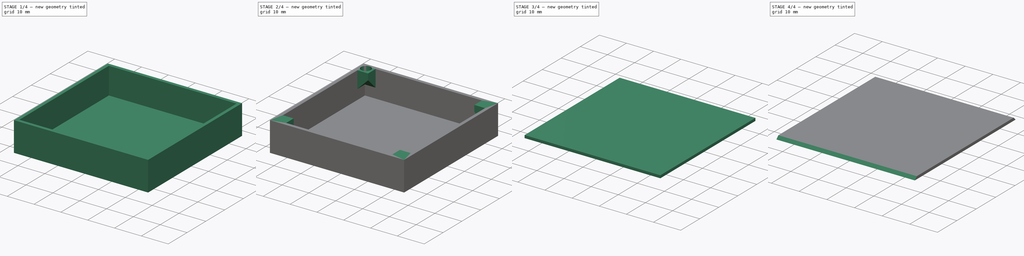
[diagram: build sequence overview — one tinted view per stage of 4, left to right]
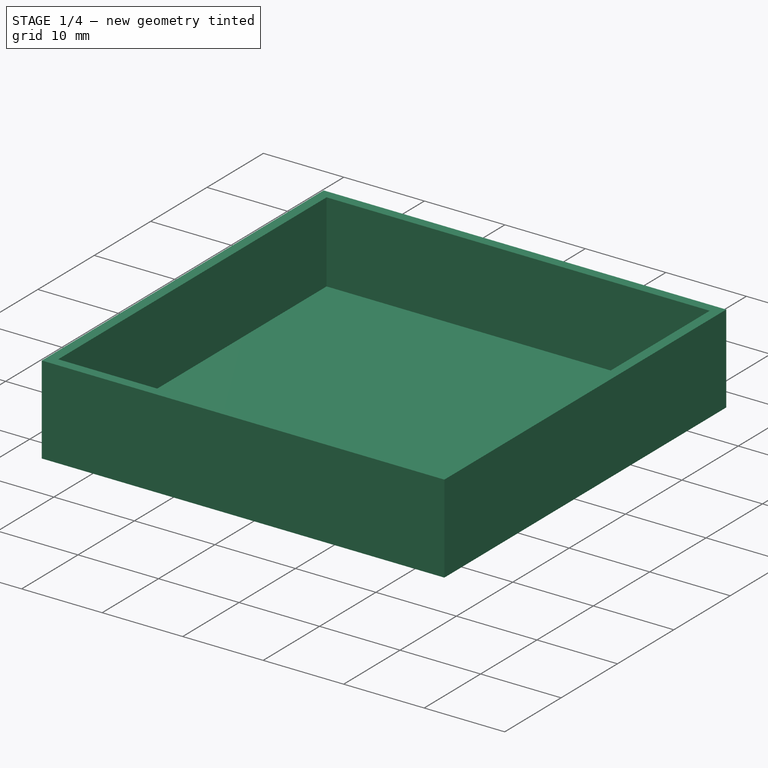
[diagram: stage 1 of 4 — iso view after this stage's code; geometry added in this stage tinted green]
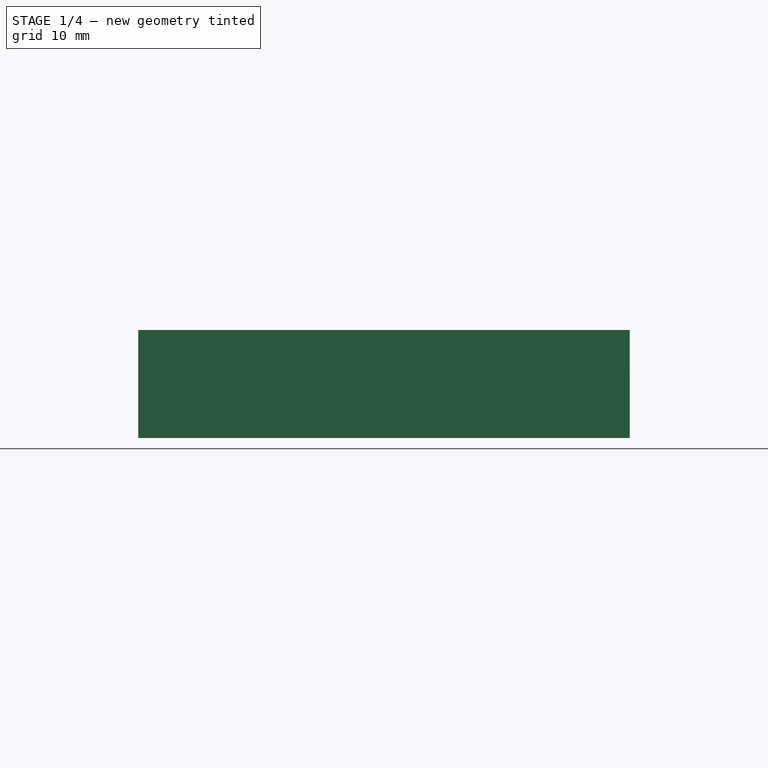
[diagram: stage 1 of 4 — front view after this stage's code; geometry added in this stage tinted green]
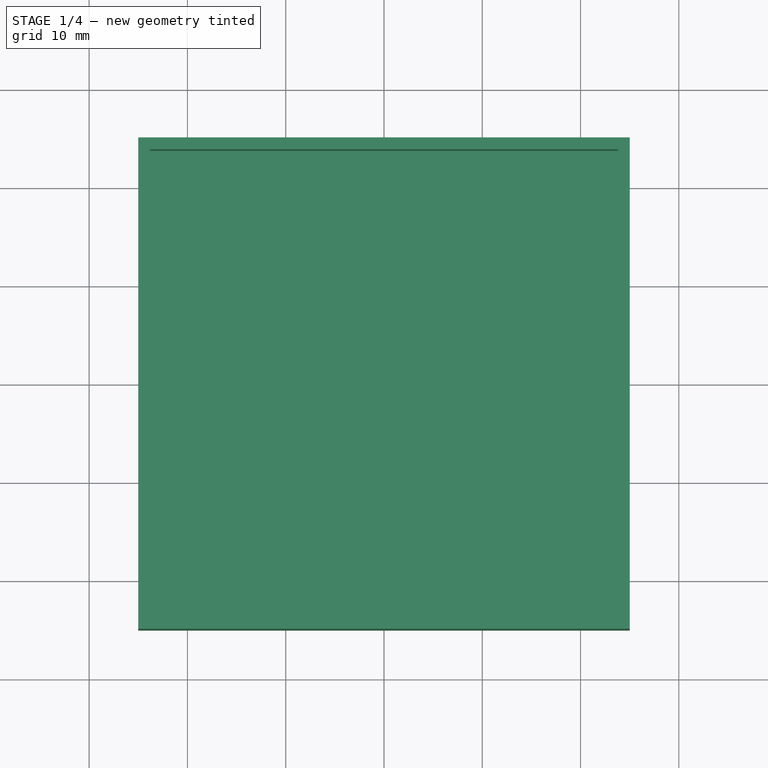
[diagram: stage 1 of 4 — top view after this stage's code; geometry added in this stage tinted green]
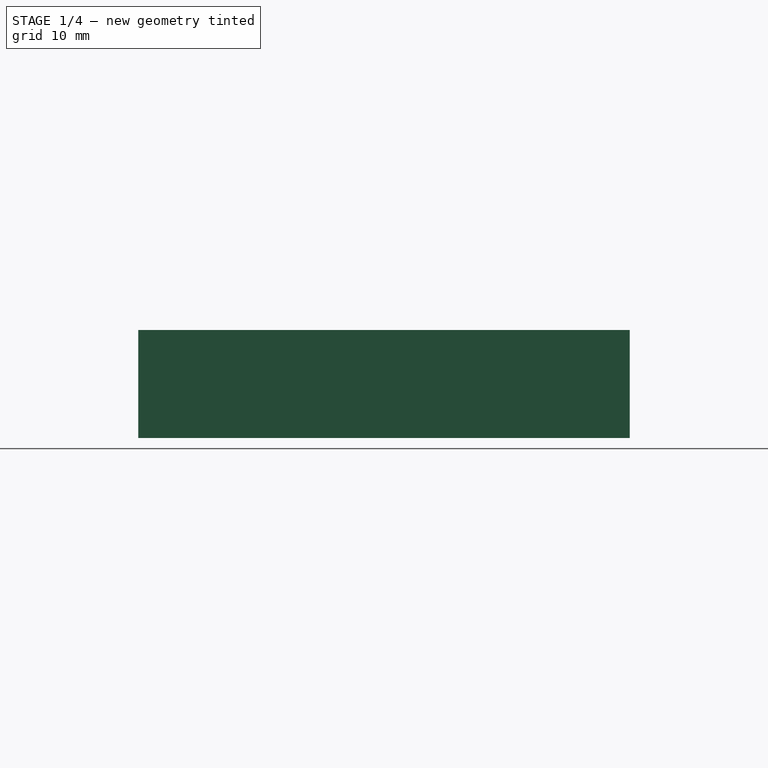
[diagram: stage 1 of 4 — right view after this stage's code; geometry added in this stage tinted green]
FCSTD DOCUMENT  (FreeCAD 1.1R41843 (Git))
Label: каб
License: All rights reserved
LicenseURL: https://en.wikipedia.org/wiki/All_rights_reserved
objects: Sketcher::SketchObject×6, PartDesign::Pad×6, App::Point×2, PartDesign::Pocket×2, PartDesign::Mirrored×2, PartDesign::SubShapeBinder×2, PartDesign::Body×2, PartDesign::Chamfer×1, PartDesign::MultiTransform×1
note: 49 computed .brp shape members not serialized (recipe doc carries the construction recipe); baked Part::Feature solids carry a one-line shape summary decoded from their .brp

FEATURE [App::Point] Origin001  label="Начало координат"
  Role = Origin
FEATURE [Sketcher::SketchObject] Sketch
  ArcFitTolerance = 1e-06
  AttachmentSupport = -> [Origin]
  ExternalTypes = [0]
  FullyConstrained = true
  MakeInternals = false
  MapMode = 5
  sketch-geometry (12):
    g0: LineSegment StartX=-25 StartY=-25 StartZ=0 EndX=25 EndY=-25 EndZ=0
    g1: LineSegment StartX=25 StartY=-25 StartZ=0 EndX=25 EndY=25 EndZ=0
    g2: LineSegment StartX=25 StartY=25 StartZ=0 EndX=-25 EndY=25 EndZ=0
    g3: LineSegment StartX=-25 StartY=25 StartZ=0 EndX=-25 EndY=-25 EndZ=0
    g4: GeomPoint [constr] X=0 Y=0 Z=0
    g5: LineSegment StartX=-23.8 StartY=-23.8 StartZ=0 EndX=23.8 EndY=-23.8 EndZ=0
    g6: LineSegment StartX=23.8 StartY=-23.8 StartZ=0 EndX=23.8 EndY=23.8 EndZ=0
    g7: LineSegment StartX=23.8 StartY=23.8 StartZ=0 EndX=-23.8 EndY=23.8 EndZ=0
    g8: LineSegment StartX=-23.8 StartY=23.8 StartZ=0 EndX=-23.8 EndY=-23.8 EndZ=0
    g9: GeomPoint [constr] X=0 Y=0 Z=0
    g10: LineSegment [constr] StartX=23.8 StartY=25 StartZ=0 EndX=23.8 EndY=23.8 EndZ=0
    g11: LineSegment [constr] StartX=23.8 StartY=23.8 StartZ=0 EndX=25 EndY=23.8 EndZ=0
  constraints (30):
    c: Coincident(g0,g1)
    c: Coincident(g1,g2)
    c: Coincident(g2,g3)
    c: Coincident(g3,g0)
    c: Horizontal(g0)
    c: Horizontal(g2)
    c: Vertical(g1)
    c: Vertical(g3)
    c: Symmetric(g2,g0,g4)
    c: Coincident(g4,g-1)
    c: Coincident(g5,g6)
    c: Coincident(g6,g7)
    c: Coincident(g7,g8)
    c: Coincident(g8,g5)
    c: Horizontal(g5)
    c: Horizontal(g7)
    c: Vertical(g6)
    c: Vertical(g8)
    c: Symmetric(g7,g5,g9)
    c: Coincident(g9,g4)
    c: DistanceX(g2,g2) = 50
    c: DistanceY(g1,g1) = 50
    c: Coincident(g11,g10)
    c: PointOnObject(g11,g1)
    c: PointOnObject(g10,g2)
    c: Coincident(g6,g10)
    c: Equal(g11,g10)
    c: Horizontal(g11)
    c: Vertical(g10)
    c: Distance(g11,g11) = 1.2
FEATURE [PartDesign::Pad] Pad
  Direction = (0,0,1)
  Length = 10
  Length2 = 10
  Profile = -> Sketch
  ReferenceAxis = -> Sketch [N_Axis]
  Refine = true
  Suppressed = false
  Type = 0
FEATURE [Sketcher::SketchObject] Sketch001
  ArcFitTolerance = 1e-06
  AttachmentSupport = -> [Pad]
  ExternalGeometry = -> [Pad]
  ExternalTypes = [0,0,0,0]
  FullyConstrained = true
  MakeInternals = false
  MapMode = 5
  Placement = pos=(0,0,0) rot=(1,0,0;3.14159rad)
FEATURE [PartDesign::Pad] Pad001
  BaseFeature = -> Pad
  Direction = (0,0,-1)
  Length = 1
  Length2 = 10
  Profile = -> Sketch001
  ReferenceAxis = -> Sketch001 [N_Axis]
  Refine = true
  Suppressed = false
  Type = 0
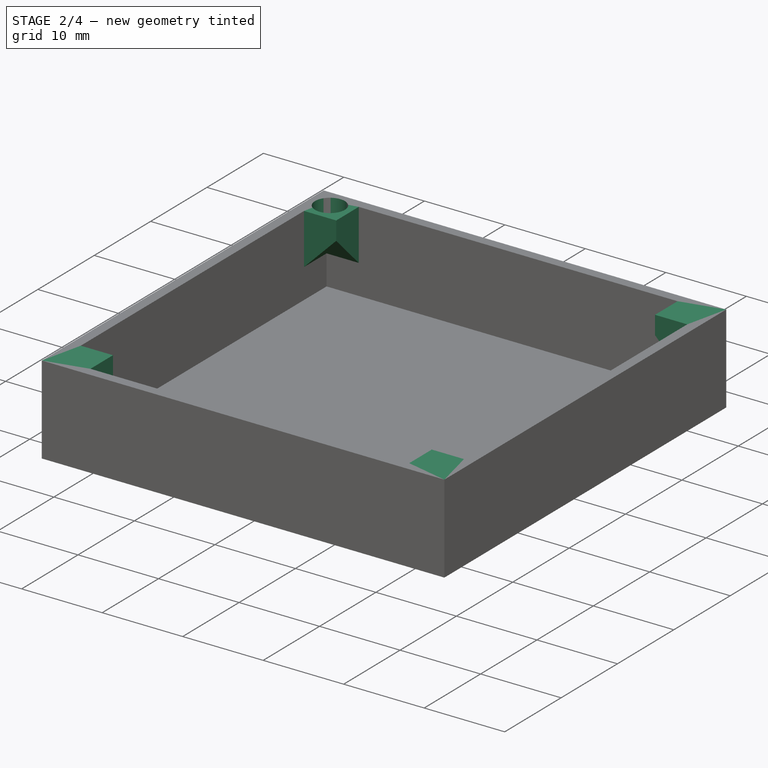
[diagram: stage 2 of 4 — iso view after this stage's code; geometry added in this stage tinted green]
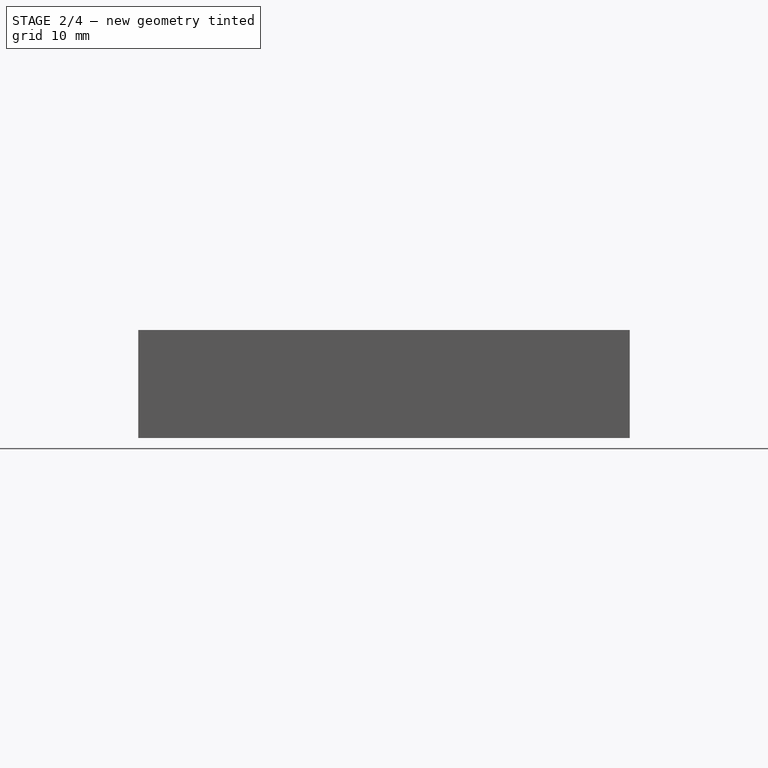
[diagram: stage 2 of 4 — front view after this stage's code; geometry added in this stage tinted green]
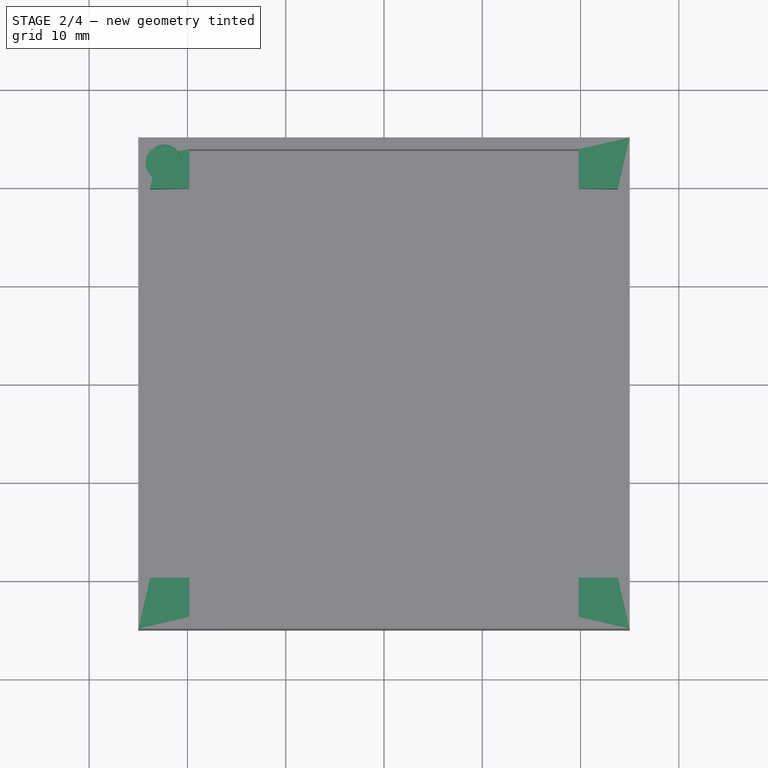
[diagram: stage 2 of 4 — top view after this stage's code; geometry added in this stage tinted green]
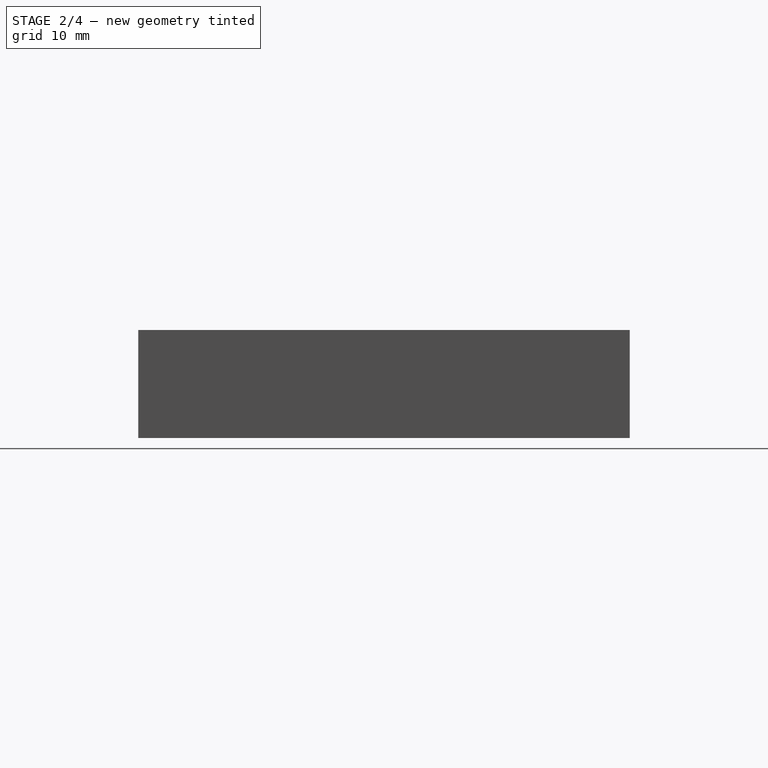
[diagram: stage 2 of 4 — right view after this stage's code; geometry added in this stage tinted green]
FEATURE [Sketcher::SketchObject] Sketch002
  ArcFitTolerance = 1e-06
  AttachmentSupport = -> [Pad001]
  ExternalGeometry = -> [Pad001]
  ExternalTypes = [0,0,0,0,0]
  FullyConstrained = true
  MakeInternals = false
  MapMode = 5
  Placement = pos=(0,0,10) rot=(0,0,1;0rad)
  sketch-geometry (17):
    g0: LineSegment StartX=23.8 StartY=23.8 StartZ=0 EndX=19.8 EndY=23.8 EndZ=0
    g1: LineSegment StartX=19.8 StartY=23.8 StartZ=0 EndX=19.8 EndY=19.8 EndZ=0
    g2: LineSegment StartX=19.8 StartY=19.8 StartZ=0 EndX=23.8 EndY=19.8 EndZ=0
    g3: LineSegment StartX=23.8 StartY=19.8 StartZ=0 EndX=23.8 EndY=23.8 EndZ=0
    g4: GeomPoint [constr] X=19.8 Y=19.8 Z=0
    g5: LineSegment StartX=-23.8 StartY=23.8 StartZ=0 EndX=-23.8 EndY=19.8 EndZ=0
    g6: LineSegment StartX=-23.8 StartY=19.8 StartZ=0 EndX=-19.8 EndY=19.8 EndZ=0
    g7: LineSegment StartX=-19.8 StartY=19.8 StartZ=0 EndX=-19.8 EndY=23.8 EndZ=0
    g8: LineSegment StartX=-19.8 StartY=23.8 StartZ=0 EndX=-23.8 EndY=23.8 EndZ=0
    g9: LineSegment StartX=-23.8 StartY=-23.8 StartZ=0 EndX=-19.8 EndY=-23.8 EndZ=0
    g10: LineSegment StartX=-19.8 StartY=-23.8 StartZ=0 EndX=-19.8 EndY=-19.8 EndZ=0
    g11: LineSegment StartX=-19.8 StartY=-19.8 StartZ=0 EndX=-23.8 EndY=-19.8 EndZ=0
    g12: LineSegment StartX=-23.8 StartY=-19.8 StartZ=0 EndX=-23.8 EndY=-23.8 EndZ=0
    g13: LineSegment StartX=23.8 StartY=-23.8 StartZ=0 EndX=23.8 EndY=-19.8 EndZ=0
    g14: LineSegment StartX=23.8 StartY=-19.8 StartZ=0 EndX=19.8 EndY=-19.8 EndZ=0
    g15: LineSegment StartX=19.8 StartY=-19.8 StartZ=0 EndX=19.8 EndY=-23.8 EndZ=0
    g16: LineSegment StartX=19.8 StartY=-23.8 StartZ=0 EndX=23.8 EndY=-23.8 EndZ=0
  constraints (45):
    c: Coincident(g0,g1)
    c: Coincident(g1,g2)
    c: Coincident(g2,g3)
    c: Coincident(g3,g0)
    c: Horizontal(g0)
    c: Horizontal(g2)
    c: Vertical(g1)
    c: Vertical(g3)
    c: Coincident(g0,g-3)
    c: Equal(g3,g0)
    c: DistanceX(g0,g0) = 4
    c: Coincident(g4,g1)
    c: Coincident(g5,g6)
    c: Coincident(g6,g7)
    c: Coincident(g7,g8)
    c: Coincident(g8,g5)
    c: Vertical(g5)
    c: Vertical(g7)
    c: Horizontal(g6)
    c: Horizontal(g8)
    c: Coincident(g5,g-7)
    c: Coincident(g9,g10)
    c: Coincident(g10,g11)
    c: Coincident(g11,g12)
    c: Coincident(g12,g9)
    c: Horizontal(g9)
    c: Horizontal(g11)
    c: Vertical(g10)
    c: Vertical(g12)
    c: Coincident(g9,g-6)
    c: Coincident(g13,g14)
    c: Coincident(g14,g15)
    c: Coincident(g15,g16)
    c: Coincident(g16,g13)
    c: Vertical(g13)
    c: Vertical(g15)
    c: Horizontal(g14)
    c: Horizontal(g16)
    c: Coincident(g13,g-5)
    c: Equal(g14,g15)
    c: Equal(g10,g11)
    c: Equal(g11,g7)
    c: Equal(g7,g8)
    c: Equal(g8,g0)
    c: Equal(g14,g8)
FEATURE [PartDesign::Pad] Pad002
  BaseFeature = -> Pad001
  Direction = (0,0,1)
  Length = 2.3
  Length2 = 10
  Profile = -> Sketch002
  ReferenceAxis = -> Sketch002 [N_Axis]
  Refine = true
  Reversed = true
  Suppressed = false
  Type = 0
FEATURE [PartDesign::Chamfer] Chamfer
  Angle = 45
  Base = -> Pad002 [Edge34,Edge43,Edge40,Edge48,Edge45,Edge30,Edge27,Edge37]
  BaseFeature = -> Pad002
  ChamferType = 0
  FlipDirection = false
  Refine = true
  Size = 3.99
  Size2 = 1
  SupportTransform = false
  Suppressed = false
  UseAllEdges = false
FEATURE [Sketcher::SketchObject] Sketch003
  ArcFitTolerance = 1e-06
  AttachmentSupport = -> [Chamfer]
  ExternalGeometry = -> [Chamfer]
  ExternalTypes = [0,0,0]
  FullyConstrained = true
  MakeInternals = false
  MapMode = 5
  Placement = pos=(0,0,10) rot=(0,0,1;0rad)
  sketch-geometry (1):
    g0: Circle CenterX=-22.4 CenterY=22.4 CenterZ=0 NormalX=0 NormalY=0 NormalZ=1 AngleXU=0 Radius=1.85
  constraints (2):
    c: Symmetric(g-5,g-4,g0)
    c: Diameter(g0) = 3.7
FEATURE [PartDesign::Pocket] Pocket
  BaseFeature = -> Chamfer
  Direction = (0,0,-1)
  Length = 2
  Length2 = 5
  Profile = -> Sketch003
  ReferenceAxis = -> Sketch003 [N_Axis]
  Refine = true
  Suppressed = false
  Type = 0
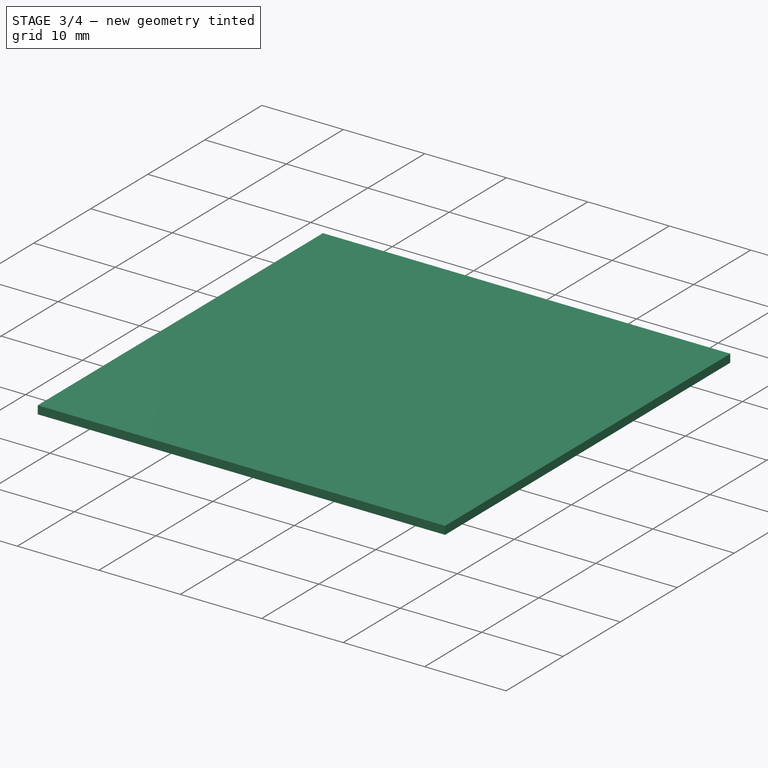
[diagram: stage 3 of 4 — iso view after this stage's code; geometry added in this stage tinted green]
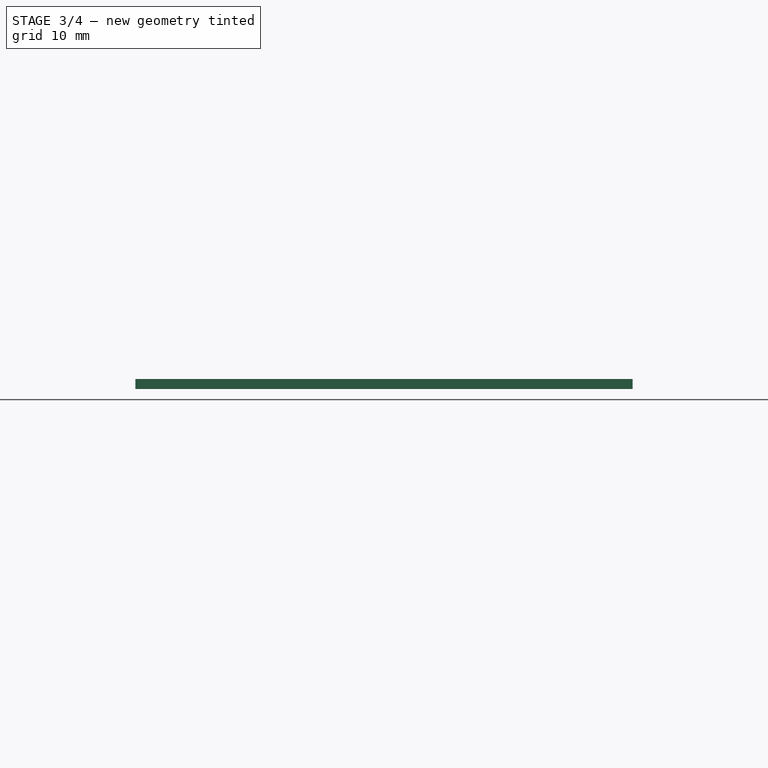
[diagram: stage 3 of 4 — front view after this stage's code; geometry added in this stage tinted green]
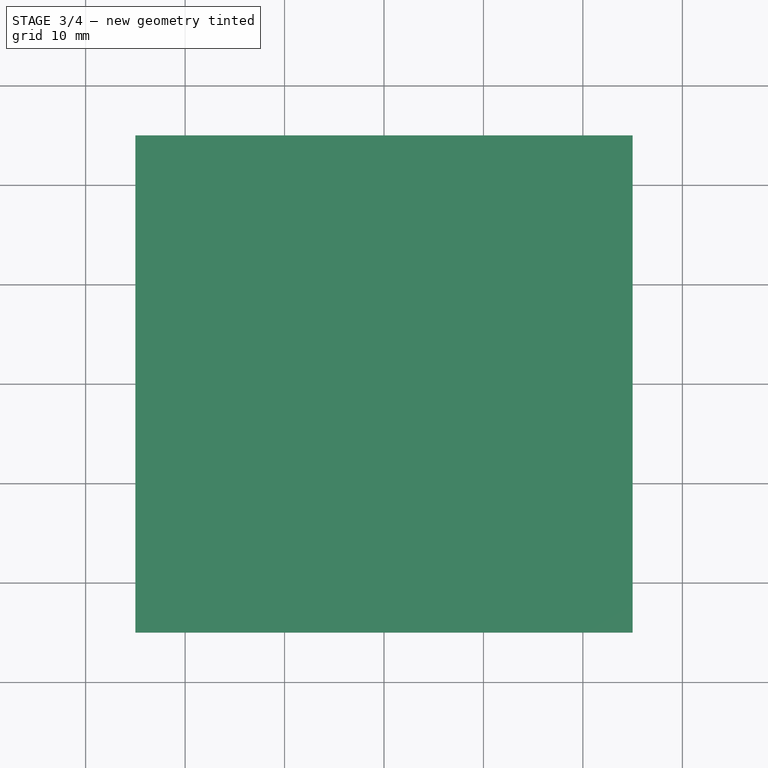
[diagram: stage 3 of 4 — top view after this stage's code; geometry added in this stage tinted green]
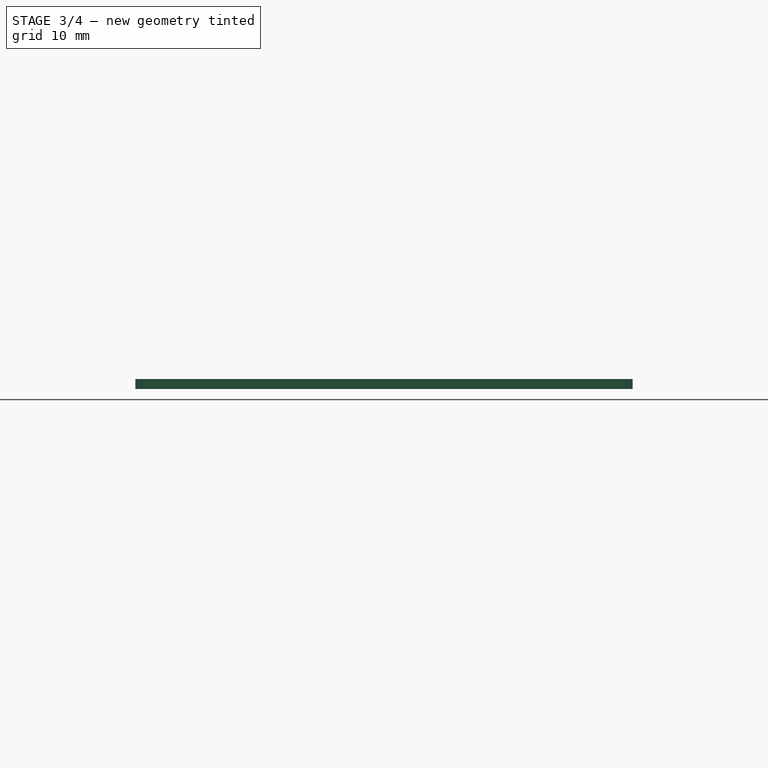
[diagram: stage 3 of 4 — right view after this stage's code; geometry added in this stage tinted green]
FEATURE [PartDesign::Mirrored] Mirrored
  MirrorPlane = -> YZ_Plane
  Refine = true
  Suppressed = false
  TransformMode = 0
FEATURE [PartDesign::Mirrored] Mirrored001
  MirrorPlane = -> XZ_Plane
  Refine = true
  Suppressed = false
  TransformMode = 0
FEATURE [PartDesign::MultiTransform] MultiTransform
  BaseFeature = -> Pocket
  Originals = -> [Pocket]
  Refine = true
  Suppressed = false
  TransformMode = 0
  Transformations = -> [Mirrored,Mirrored001]
FEATURE [App::Point] Origin003  label="Начало координат002"
  Role = Origin
FEATURE [PartDesign::SubShapeBinder] Binder
  BindCopyOnChange = 0
  BindMode = 0
  ClaimChildren = false
  Context = -> Body001 [Binder.]
  Fuse = false
  MakeFace = true
  OffsetFill = false
  OffsetIntersection = false
  OffsetJoinType = 0
  OffsetOpenResult = false
  PartialLoad = false
  Refine = true
  Relative = true
  Support = -> [Body[MultiTransform.Edge40,MultiTransform.Edge39,MultiTransform.Edge42,MultiTransform.Edge41]]
  _Version = 2
FEATURE [PartDesign::Pad] Pad003
  Direction = (0,0,1)
  Length = 1
  Length2 = 10
  Profile = -> Binder
  Refine = true
  Suppressed = false
  Type = 0
FEATURE [Sketcher::SketchObject] Sketch005
  ArcFitTolerance = 1e-06
  AttachmentSupport = -> [MultiTransform]
  ExternalGeometry = -> [MultiTransform]
  ExternalTypes = [0,0,0,0,0,0,0,0,0,0,0,0]
  FullyConstrained = true
  MakeInternals = false
  MapMode = 5
  Placement = pos=(0,0,10) rot=(0,0,1;0rad)
  sketch-geometry (12):
    g0: ArcOfCircle CenterX=22.4 CenterY=22.4 CenterZ=0 NormalX=0 NormalY=0 NormalZ=1 AngleXU=0 Radius=1.85 StartAngle=5.57073 EndAngle=8.56644
    g1: ArcOfCircle CenterX=-22.4 CenterY=22.4 CenterZ=0 NormalX=0 NormalY=0 NormalZ=1 AngleXU=0 Radius=1.85 StartAngle=0.858337 EndAngle=3.85405
    g2: LineSegment StartX=-21.1907 StartY=23.8 StartZ=0 EndX=-19.8 EndY=23.8 EndZ=0
    g3: LineSegment StartX=-23.8 StartY=19.8 StartZ=0 EndX=-23.8 EndY=21.1907 EndZ=0
    g4: ArcOfCircle CenterX=-22.4 CenterY=-22.4 CenterZ=0 NormalX=0 NormalY=0 NormalZ=1 AngleXU=0 Radius=1.85 StartAngle=2.42913 EndAngle=5.42485
    g5: ArcOfCircle CenterX=22.4 CenterY=-22.4 CenterZ=0 NormalX=0 NormalY=0 NormalZ=1 AngleXU=0 Radius=1.85 StartAngle=3.99993 EndAngle=6.99564
    g6: LineSegment StartX=21.1907 StartY=-23.8 StartZ=0 EndX=19.8 EndY=-23.8 EndZ=0
    g7: LineSegment StartX=23.8 StartY=-21.1907 StartZ=0 EndX=23.8 EndY=-19.8 EndZ=0
    g8: LineSegment StartX=23.8 StartY=19.8 StartZ=0 EndX=23.8 EndY=21.1907 EndZ=0
    g9: LineSegment StartX=19.8 StartY=23.8 StartZ=0 EndX=21.1907 EndY=23.8 EndZ=0
    g10: LineSegment StartX=-23.8 StartY=-21.1907 StartZ=0 EndX=-23.8 EndY=-19.8 EndZ=0
    g11: LineSegment StartX=-21.1907 StartY=-23.8 StartZ=0 EndX=-19.8 EndY=-23.8 EndZ=0
  constraints (32):
    c: Coincident(g0,g-6)
    c: PointOnObject(g0,g-6)
    c: PointOnObject(g1,g-7)
    c: Coincident(g1,g-7)
    c: Coincident(g2,g1)
    c: Coincident(g2,g-14)
    c: Coincident(g3,g-11)
    c: Coincident(g3,g1)
    c: Coincident(g4,g-8)
    c: PointOnObject(g4,g-8)
    c: Coincident(g5,g-5)
    c: PointOnObject(g5,g-5)
    c: Coincident(g6,g5)
    c: Coincident(g6,g-12)
    c: Coincident(g7,g-13)
    c: Vertical(g7)
    c: Coincident(g5,g7)
    c: Horizontal(g6)
    c: Coincident(g8,g-13)
    c: Coincident(g8,g0)
    c: Horizontal(g9)
    c: Vertical(g8)
    c: Coincident(g0,g9)
    c: Coincident(g9,g-14)
    c: Horizontal(g2)
    c: Vertical(g3)
    c: Coincident(g10,g4)
    c: Coincident(g10,g-11)
    c: Coincident(g11,g4)
    c: Coincident(g11,g-12)
    c: Horizontal(g11)
    c: Vertical(g10)
FEATURE [PartDesign::Pad] Pad005
  BaseFeature = -> MultiTransform
  Direction = (0,0,1)
  Length = 1.5
  Length2 = 10
  Profile = -> Sketch005
  ReferenceAxis = -> Sketch005 [N_Axis]
  Refine = true
  Suppressed = false
  Type = 0
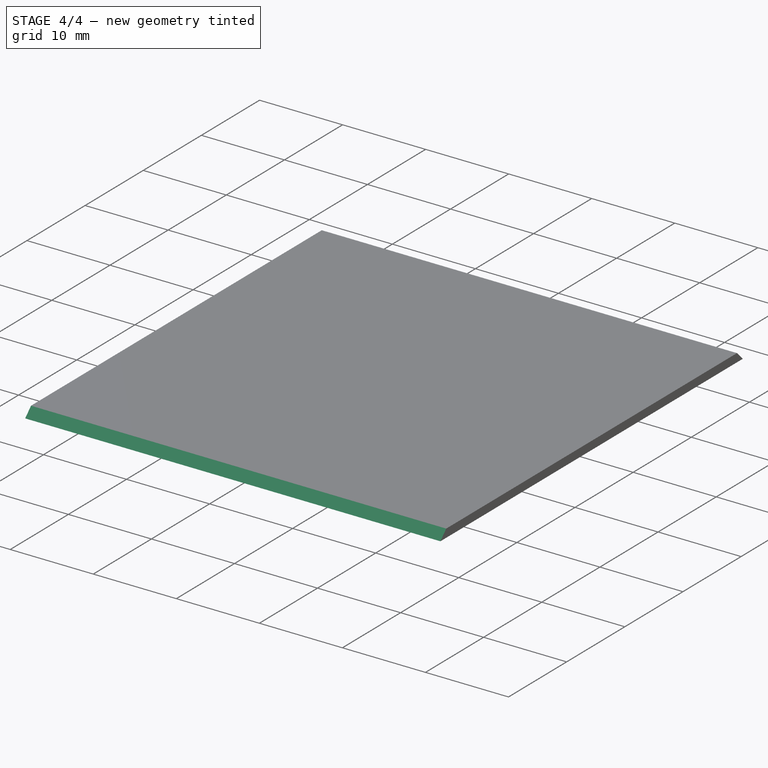
[diagram: stage 4 of 4 — iso view after this stage's code; geometry added in this stage tinted green]
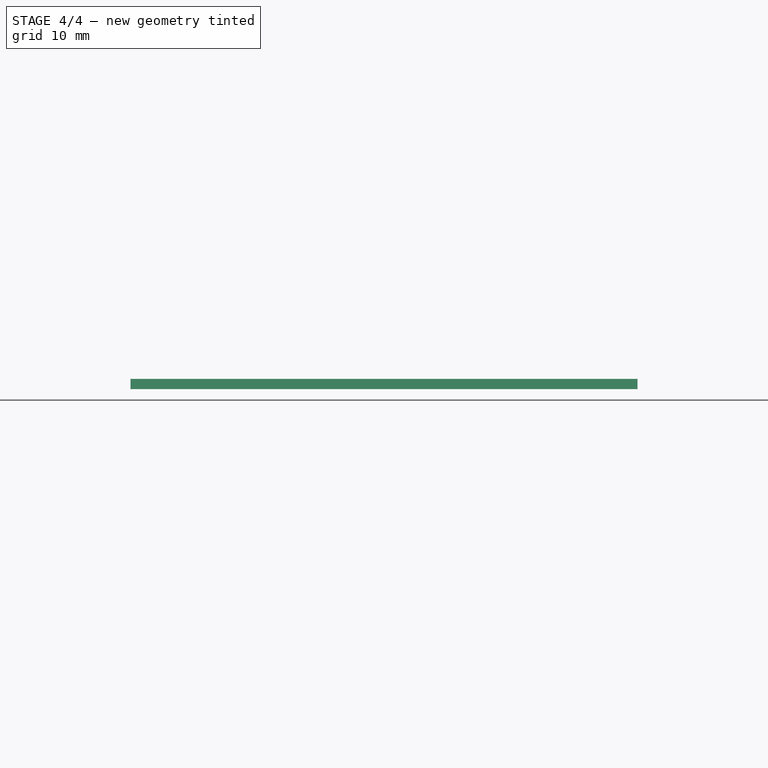
[diagram: stage 4 of 4 — front view after this stage's code; geometry added in this stage tinted green]
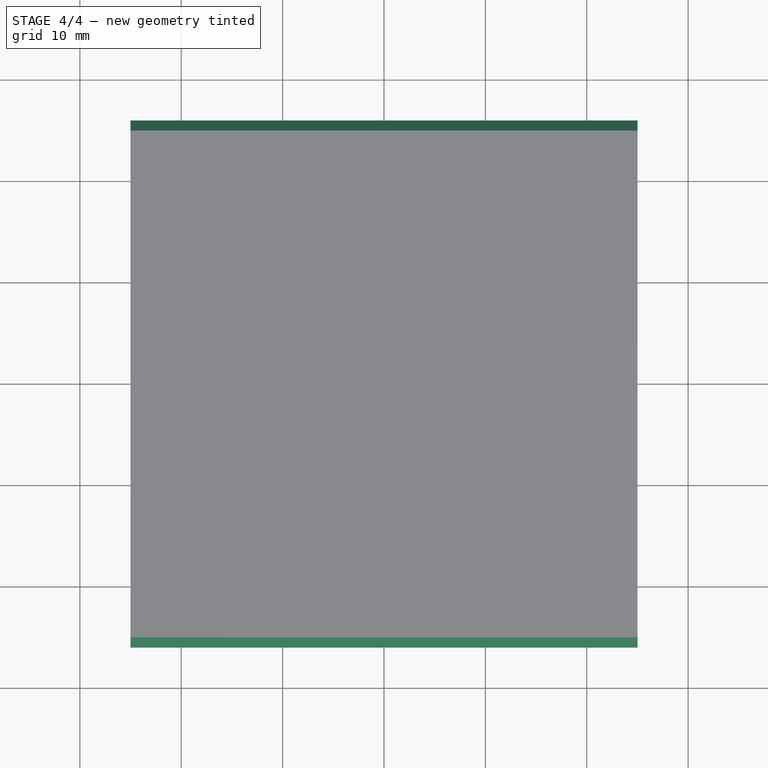
[diagram: stage 4 of 4 — top view after this stage's code; geometry added in this stage tinted green]
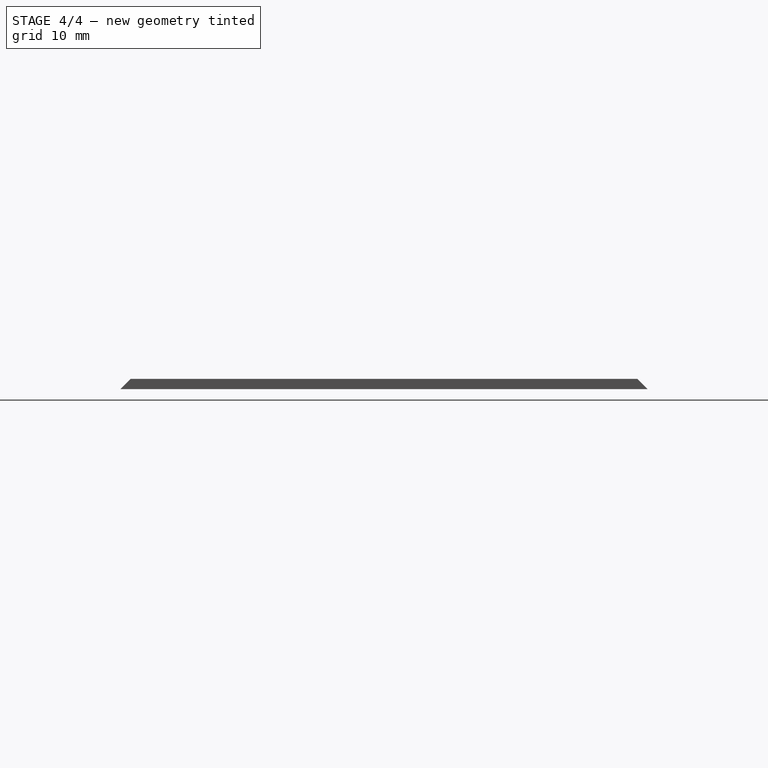
[diagram: stage 4 of 4 — right view after this stage's code; geometry added in this stage tinted green]
FEATURE [Sketcher::SketchObject] Sketch004
  ArcFitTolerance = 1e-06
  AttachmentSupport = -> [Pad003]
  ExternalGeometry = -> [Pad003]
  ExternalTypes = [0,0]
  FullyConstrained = true
  MakeInternals = false
  MapMode = 5
  Placement = pos=(25,0,0) rot=(0.57735,0.57735,0.57735;2.0944rad)
  sketch-geometry (4):
    g0: LineSegment StartX=26 StartY=10 StartZ=0 EndX=25 EndY=11 EndZ=0
    g1: LineSegment StartX=-26 StartY=10 StartZ=0 EndX=-25 EndY=11 EndZ=0
    g2: LineSegment StartX=25 StartY=10 StartZ=0 EndX=26 EndY=10 EndZ=0
    g3: LineSegment StartX=-25 StartY=10 StartZ=0 EndX=-26 EndY=10 EndZ=0
  constraints (10):
    c: Coincident(g0,g-4)
    c: Coincident(g1,g-3)
    c: Coincident(g2,g-4)
    c: Coincident(g2,g0)
    c: Equal(g2,g-4)
    c: Coincident(g3,g1)
    c: Equal(g3,g2)
    c: Horizontal(g2)
    c: Horizontal(g3)
    c: Coincident(g3,g-3)
FEATURE [PartDesign::Pad] Pad004
  BaseFeature = -> Pad003
  Direction = (1,0,0)
  Length = 10
  Length2 = 10
  Profile = -> Sketch004
  ReferenceAxis = -> Sketch004 [N_Axis]
  Refine = true
  Suppressed = false
  Type = 3
  UpToFace = -> Pad003 [Face4]
FEATURE [PartDesign::Body] Body  label="Тело"
  AllowCompound = false
  Group = -> [Sketch,Pad,Sketch001,Pad001,Sketch002,Pad002,Chamfer,Sketch003,Pocket,MultiTransform,Mirrored,Mirrored001,Sketch005,Pad005]
  Origin = -> Origin
  Tip = -> Pad005
FEATURE [PartDesign::SubShapeBinder] Binder001
  BindCopyOnChange = 0
  BindMode = 0
  ClaimChildren = false
  Context = -> Body001 [Binder001.]
  Fuse = false
  MakeFace = true
  OffsetFill = false
  OffsetIntersection = false
  OffsetJoinType = 0
  OffsetOpenResult = false
  PartialLoad = false
  Refine = true
  Relative = true
  Support = -> [Body[Pad005.Edge116,Pad005.Edge114,Pad005.Edge112,Pad005.Edge110]]
  _Version = 2
FEATURE [PartDesign::Pocket] Pocket001
  BaseFeature = -> Pad004
  Direction = (0,0,-1)
  Length = 0
  Length2 = 5
  Offset = 0.5
  Profile = -> Binder001
  Refine = true
  Reversed = true
  Suppressed = false
  Type = 2
FEATURE [PartDesign::Body] Body001  label="Тело001"
  AllowCompound = false
  Group = -> [Binder,Pad003,Sketch004,Pad004,Binder001,Pocket001]
  Origin = -> Origin002
  Tip = -> Pocket001
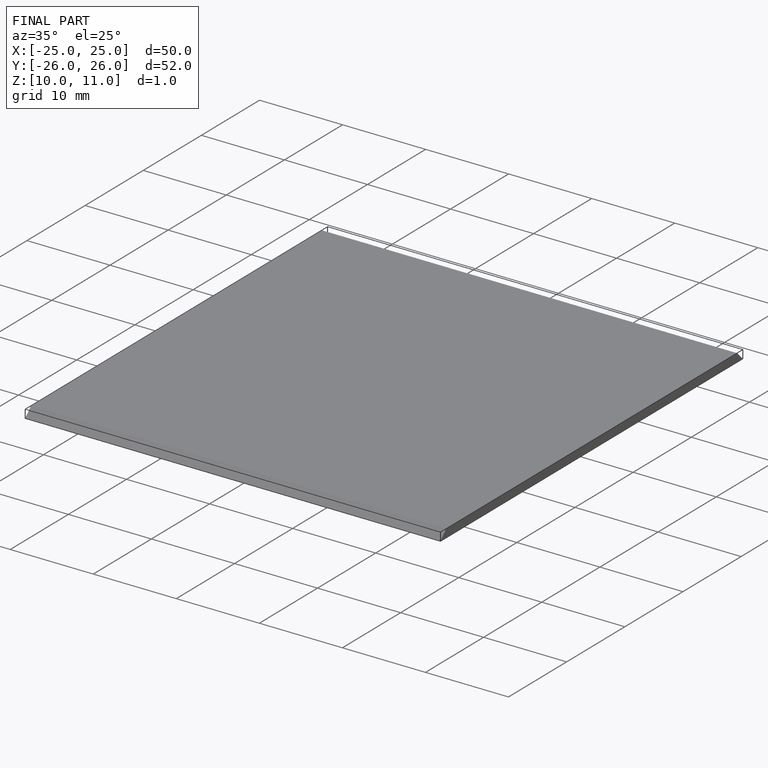
[diagram: finished part — iso view with bounding-box wireframe]
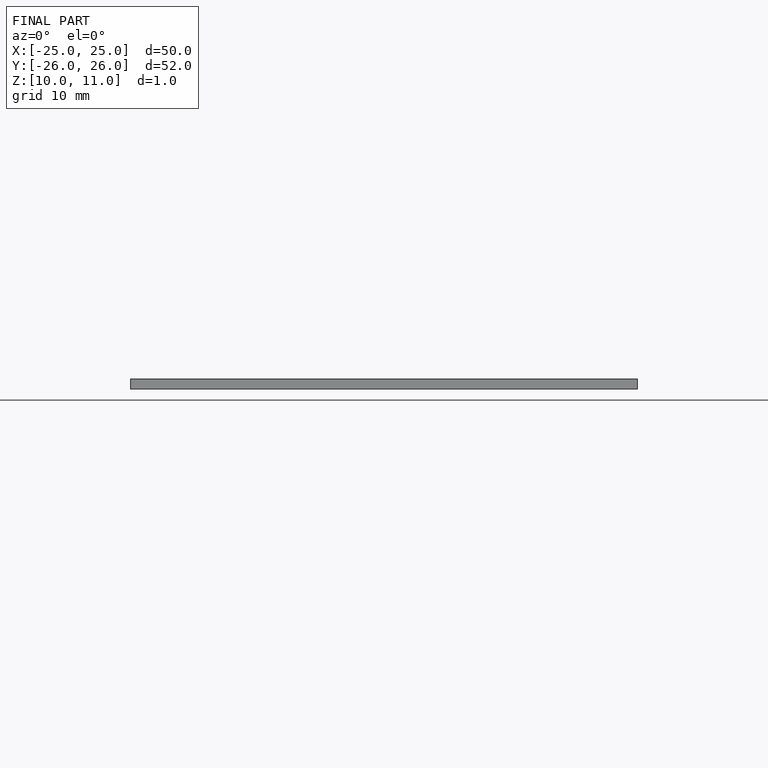
[diagram: finished part — front view with bounding-box wireframe]
